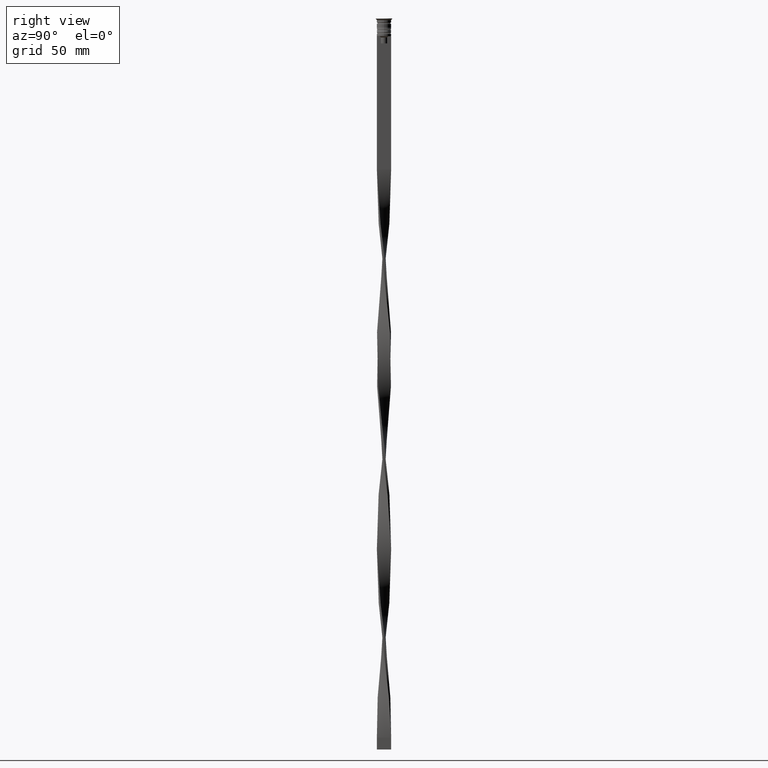
[diagram: clean part render]
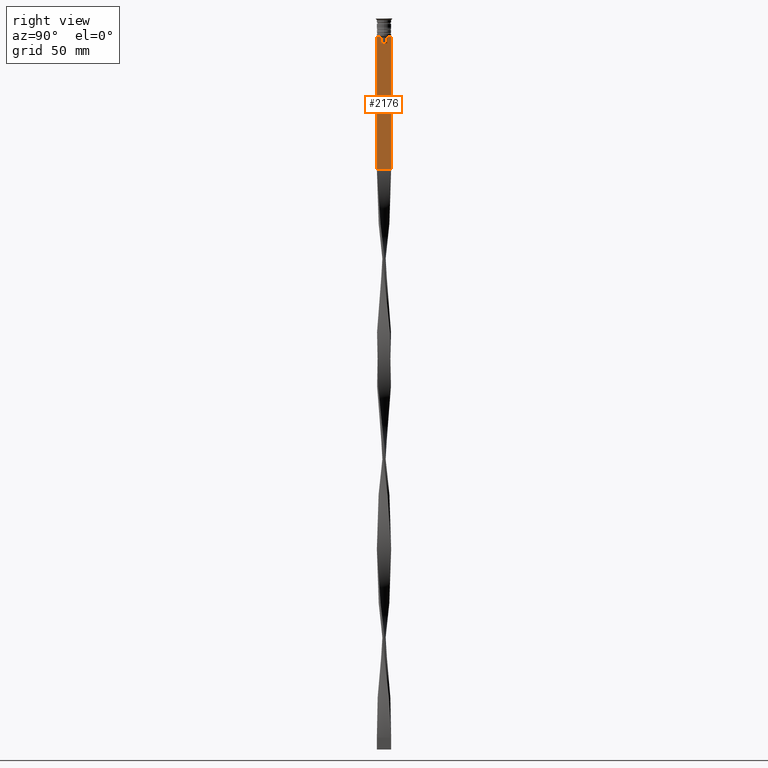
[diagram: same view with one face highlighted and labeled with its STEP entity id]
A machine part, right view. The second image highlights one B-rep face of the part: STEP entity #2176.
In plain terms, the highlighted planar face has unit normal (-1, 0, 0).
Its self-contained STEP definition (entity closure, byte-faithful):
#13 = CARTESIAN_POINT ( 'NONE',  ( 0.4999999999999998890, -3.000000000000000000, -1.417237469701779329 ) ) ;
#19 = VECTOR ( 'NONE', #2226, 1000.000000000000000 ) ;
#36 = VECTOR ( 'NONE', #1099, 1000.000000000000000 ) ;
#49 = CARTESIAN_POINT ( 'NONE',  ( 0.4999999999999998890, -3.000000000000000000, -7.500000000000000000 ) ) ;
#68 = DIRECTION ( 'NONE',  ( 0.000000000000000000, -1.000000000000000000, 0.000000000000000000 ) ) ;
#77 = VERTEX_POINT ( 'NONE', #2122 ) ;
#101 = VECTOR ( 'NONE', #3081, 1000.000000000000000 ) ;
#204 = LINE ( 'NONE', #2883, #19 ) ;
#235 = CARTESIAN_POINT ( 'NONE',  ( 0.4999999999999998890, -3.000000000000000000, -7.500000000000000000 ) ) ;
#261 = CARTESIAN_POINT ( 'NONE',  ( 0.4999999999999998890, -1.307669683062199439, -8.000000000000000000 ) ) ;
#321 = CARTESIAN_POINT ( 'NONE',  ( 0.4999999999999998890, -1.484307477388859153, -7.835011508197190722 ) ) ;
#341 = CARTESIAN_POINT ( 'NONE',  ( 0.4999999999999998890, -1.833030277982335754, -7.500000000000000000 ) ) ;
#352 = CARTESIAN_POINT ( 'NONE',  ( 0.4999999999999998890, -1.307669683062199439, -10.49999999999999822 ) ) ;
#432 = VECTOR ( 'NONE', #3868, 1000.000000000000000 ) ;
#460 = VERTEX_POINT ( 'NONE', #2607 ) ;
#502 = B_SPLINE_CURVE_WITH_KNOTS ( 'NONE', 3,
 ( #2708, #2223, #718, #1630 ),
 .UNSPECIFIED., .F., .F.,
 ( 4, 4 ),
 ( 0.003278537493109848298, 0.004003794023484941178 ),
 .UNSPECIFIED. ) ;
#558 = VECTOR ( 'NONE', #2132, 1000.000000000000000 ) ;
#603 = ORIENTED_EDGE ( 'NONE', *, *, #3463, .T. ) ;
#641 = ORIENTED_EDGE ( 'NONE', *, *, #2540, .T. ) ;
#661 = VERTEX_POINT ( 'NONE', #3169 ) ;
#703 = VERTEX_POINT ( 'NONE', #1340 ) ;
#705 = B_SPLINE_CURVE_WITH_KNOTS ( 'NONE', 3,
 ( #2443, #321, #1525, #341 ),
 .UNSPECIFIED., .F., .F.,
 ( 4, 4 ),
 ( 0.007225659348748082224, 0.007950554640278054835 ),
 .UNSPECIFIED. ) ;
#718 = CARTESIAN_POINT ( 'NONE',  ( 0.4999999999999998890, 1.484355510416485835, -7.834966642958598015 ) ) ;
#748 = CARTESIAN_POINT ( 'NONE',  ( 0.4999999999999998890, 1.399999999999997691, -10.49999999999999822 ) ) ;
#809 = VERTEX_POINT ( 'NONE', #1144 ) ;
#876 = EDGE_CURVE ( 'NONE', #2257, #1305, #2160, .T. ) ;
#896 = LINE ( 'NONE', #3895, #558 ) ;
#931 = EDGE_LOOP ( 'NONE', ( #3007, #603, #641, #3430, #1367, #2247, #3047, #3863, #2227, #2781, #2706, #3497 ) ) ;
#966 = DIRECTION ( 'NONE',  ( 0.000000000000000000, 0.000000000000000000, -1.000000000000000000 ) ) ;
#1051 = VECTOR ( 'NONE', #1861, 1000.000000000000000 ) ;
#1099 = DIRECTION ( 'NONE',  ( 0.000000000000000000, -1.000000000000000000, 0.000000000000000000 ) ) ;
#1134 = EDGE_CURVE ( 'NONE', #661, #2546, #204, .T. ) ;
#1144 = CARTESIAN_POINT ( 'NONE',  ( 0.4999999999999998890, 1.833030277982335754, -7.500000000000000000 ) ) ;
#1223 = EDGE_CURVE ( 'NONE', #1305, #703, #705, .T. ) ;
#1282 = LINE ( 'NONE', #2468, #101 ) ;
#1305 = VERTEX_POINT ( 'NONE', #261 ) ;
#1318 = VECTOR ( 'NONE', #966, 1000.000000000000000 ) ;
#1340 = CARTESIAN_POINT ( 'NONE',  ( 0.4999999999999998890, -1.833030277982335754, -7.500000000000000000 ) ) ;
#1341 = LINE ( 'NONE', #2228, #2881 ) ;
#1367 = ORIENTED_EDGE ( 'NONE', *, *, #876, .T. ) ;
#1387 = VERTEX_POINT ( 'NONE', #1594 ) ;
#1493 = DIRECTION ( 'NONE',  ( 0.000000000000000000, 0.000000000000000000, 1.000000000000000000 ) ) ;
#1525 = CARTESIAN_POINT ( 'NONE',  ( 0.4999999999999998890, -1.659011726860414093, -7.667884880598472286 ) ) ;
#1528 = EDGE_CURVE ( 'NONE', #703, #2290, #2976, .T. ) ;
#1542 = PLANE ( 'NONE',  #2053 ) ;
#1594 = CARTESIAN_POINT ( 'NONE',  ( 0.4999999999999998890, -3.000000000000000000, -7.500000000000000000 ) ) ;
#1630 = CARTESIAN_POINT ( 'NONE',  ( 0.4999999999999998890, 1.307669683062199439, -8.000000000000000000 ) ) ;
#1792 = CARTESIAN_POINT ( 'NONE',  ( 0.4999999999999998890, -2.856571371417139904, -7.500000000000000000 ) ) ;
#1818 = EDGE_CURVE ( 'NONE', #2290, #1387, #2142, .T. ) ;
#1861 = DIRECTION ( 'NONE',  ( -0.000000000000000000, -0.000000000000000000, 1.000000000000000000 ) ) ;
#2009 = EDGE_CURVE ( 'NONE', #661, #3741, #1282, .T. ) ;
#2046 = EDGE_CURVE ( 'NONE', #3216, #2546, #1341, .T. ) ;
#2053 = AXIS2_PLACEMENT_3D ( 'NONE', #13, #3311, #1493 ) ;
#2122 = CARTESIAN_POINT ( 'NONE',  ( 0.4999999999999998890, 1.307669683062199439, -10.49999999999999822 ) ) ;
#2132 = DIRECTION ( 'NONE',  ( 0.000000000000000000, 0.000000000000000000, -1.000000000000000000 ) ) ;
#2142 = LINE ( 'NONE', #49, #3774 ) ;
#2160 = LINE ( 'NONE', #3661, #1051 ) ;
#2176 = ADVANCED_FACE ( 'NONE', ( #3635 ), #1542, .F. ) ;
#2216 = EDGE_CURVE ( 'NONE', #1387, #3216, #2759, .T. ) ;
#2223 = CARTESIAN_POINT ( 'NONE',  ( 0.4999999999999998890, 1.659046061654642967, -7.667851756010362507 ) ) ;
#2226 = DIRECTION ( 'NONE',  ( 0.000000000000000000, 0.000000000000000000, -1.000000000000000000 ) ) ;
#2227 = ORIENTED_EDGE ( 'NONE', *, *, #2216, .T. ) ;
#2228 = CARTESIAN_POINT ( 'NONE',  ( 0.4999999999999998890, -3.000000000000000000, -63.50000000000000000 ) ) ;
#2247 = ORIENTED_EDGE ( 'NONE', *, *, #1223, .T. ) ;
#2257 = VERTEX_POINT ( 'NONE', #352 ) ;
#2290 = VERTEX_POINT ( 'NONE', #1792 ) ;
#2402 = LINE ( 'NONE', #3625, #2635 ) ;
#2443 = CARTESIAN_POINT ( 'NONE',  ( 0.4999999999999998890, -1.307669683062199439, -8.000000000000000000 ) ) ;
#2468 = CARTESIAN_POINT ( 'NONE',  ( 0.4999999999999998890, -3.000000000000000000, -7.500000000000000000 ) ) ;
#2540 = EDGE_CURVE ( 'NONE', #460, #77, #896, .T. ) ;
#2546 = VERTEX_POINT ( 'NONE', #3009 ) ;
#2595 = LINE ( 'NONE', #748, #36 ) ;
#2607 = CARTESIAN_POINT ( 'NONE',  ( 0.4999999999999998890, 1.307669683062199439, -8.000000000000000000 ) ) ;
#2635 = VECTOR ( 'NONE', #2747, 1000.000000000000000 ) ;
#2706 = ORIENTED_EDGE ( 'NONE', *, *, #1134, .F. ) ;
#2708 = CARTESIAN_POINT ( 'NONE',  ( 0.4999999999999998890, 1.833030277982335754, -7.500000000000000000 ) ) ;
#2747 = DIRECTION ( 'NONE',  ( 0.000000000000000000, -1.000000000000000000, 0.000000000000000000 ) ) ;
#2759 = LINE ( 'NONE', #3048, #1318 ) ;
#2781 = ORIENTED_EDGE ( 'NONE', *, *, #2046, .T. ) ;
#2881 = VECTOR ( 'NONE', #3447, 1000.000000000000000 ) ;
#2883 = CARTESIAN_POINT ( 'NONE',  ( 0.4999999999999998890, 3.000000000000000000, -1.417237469701779329 ) ) ;
#2976 = LINE ( 'NONE', #235, #432 ) ;
#3007 = ORIENTED_EDGE ( 'NONE', *, *, #3861, .T. ) ;
#3009 = CARTESIAN_POINT ( 'NONE',  ( 0.4999999999999998890, 3.000000000000000000, -63.50000000000000000 ) ) ;
#3047 = ORIENTED_EDGE ( 'NONE', *, *, #1528, .T. ) ;
#3048 = CARTESIAN_POINT ( 'NONE',  ( 0.4999999999999998890, -3.000000000000000000, -1.417237469701779329 ) ) ;
#3081 = DIRECTION ( 'NONE',  ( 0.000000000000000000, -1.000000000000000000, 0.000000000000000000 ) ) ;
#3162 = CARTESIAN_POINT ( 'NONE',  ( 0.4999999999999998890, 2.856571371417139904, -7.500000000000000000 ) ) ;
#3169 = CARTESIAN_POINT ( 'NONE',  ( 0.4999999999999998890, 3.000000000000000000, -7.500000000000000000 ) ) ;
#3216 = VERTEX_POINT ( 'NONE', #3850 ) ;
#3311 = DIRECTION ( 'NONE',  ( -1.000000000000000000, 0.000000000000000000, 0.000000000000000000 ) ) ;
#3430 = ORIENTED_EDGE ( 'NONE', *, *, #3539, .T. ) ;
#3447 = DIRECTION ( 'NONE',  ( 0.000000000000000000, 1.000000000000000000, 0.000000000000000000 ) ) ;
#3463 = EDGE_CURVE ( 'NONE', #809, #460, #502, .T. ) ;
#3497 = ORIENTED_EDGE ( 'NONE', *, *, #2009, .T. ) ;
#3539 = EDGE_CURVE ( 'NONE', #77, #2257, #2595, .T. ) ;
#3625 = CARTESIAN_POINT ( 'NONE',  ( 0.4999999999999998890, -3.000000000000000000, -7.500000000000000000 ) ) ;
#3635 = FACE_OUTER_BOUND ( 'NONE', #931, .T. ) ;
#3661 = CARTESIAN_POINT ( 'NONE',  ( 0.4999999999999998890, -1.307669683062199439, 0.000000000000000000 ) ) ;
#3741 = VERTEX_POINT ( 'NONE', #3162 ) ;
#3774 = VECTOR ( 'NONE', #68, 1000.000000000000000 ) ;
#3850 = CARTESIAN_POINT ( 'NONE',  ( 0.4999999999999998890, -3.000000000000000000, -63.50000000000000000 ) ) ;
#3861 = EDGE_CURVE ( 'NONE', #3741, #809, #2402, .T. ) ;
#3863 = ORIENTED_EDGE ( 'NONE', *, *, #1818, .T. ) ;
#3868 = DIRECTION ( 'NONE',  ( 0.000000000000000000, -1.000000000000000000, 0.000000000000000000 ) ) ;
#3895 = CARTESIAN_POINT ( 'NONE',  ( 0.4999999999999998890, 1.307669683062199439, 0.000000000000000000 ) ) ;